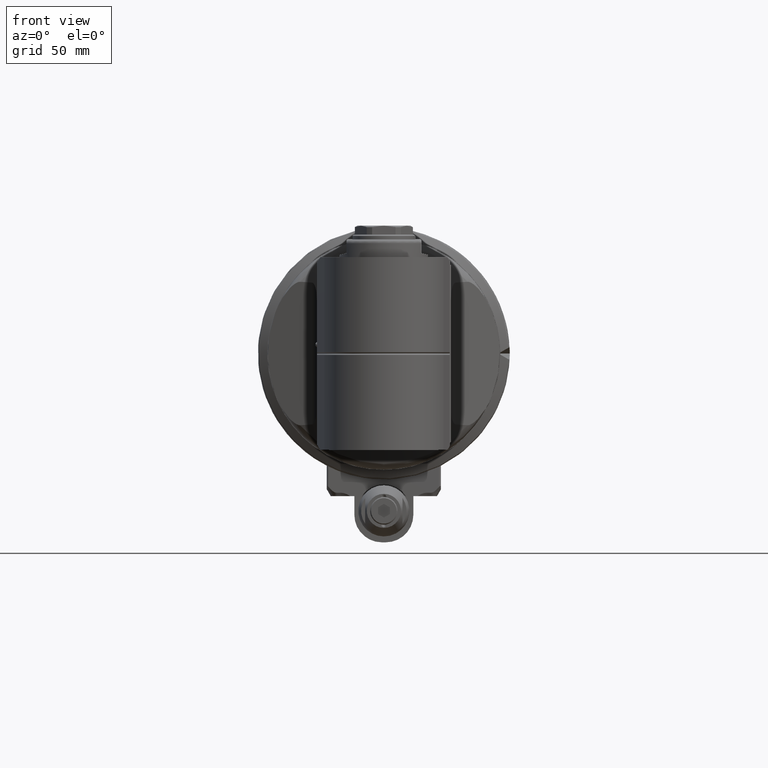
[diagram: clean part render]
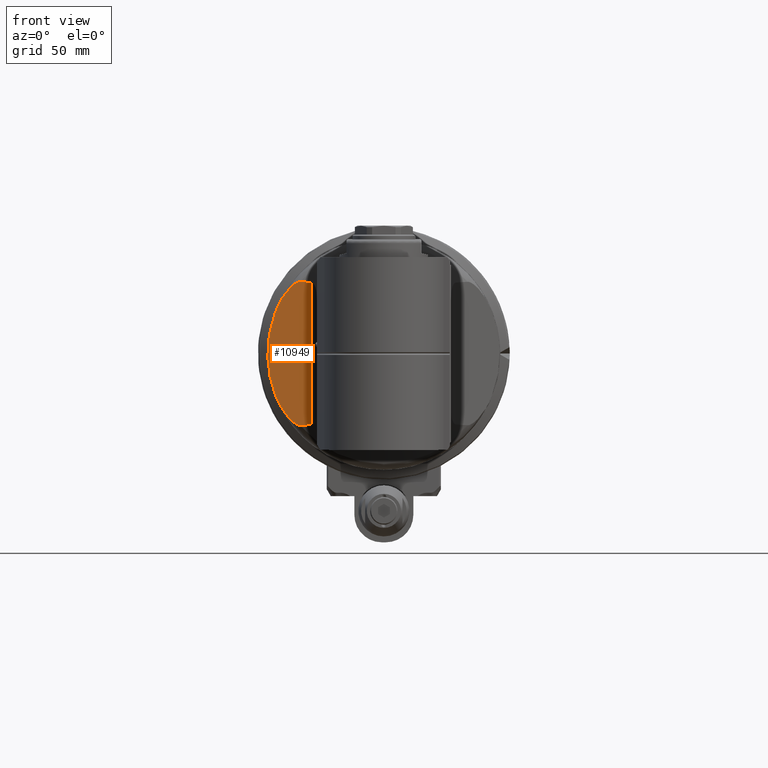
[diagram: same view with one face highlighted and labeled with its STEP entity id]
A machine part, front view. The second image highlights one B-rep face of the part: STEP entity #10949.
In plain terms, the highlighted planar face has unit normal (0.342, 0.9397, 0).
Its self-contained STEP definition (entity closure, byte-faithful):
#57=ELLIPSE('',#12046,62.1233155909331,36.4919332928876);
#60=ELLIPSE('',#12054,62.1233155909331,36.4919332928876);
#65=ELLIPSE('',#12232,62.7864885760796,59.);
#321=B_SPLINE_CURVE_WITH_KNOTS('',3,(#22539,#22540,#22541,#22542,#22543,
#22544,#22545,#22546,#22547,#22548,#22549,#22550,#22551,#22552,#22553,#22554),
 .UNSPECIFIED.,.F.,.F.,(4,2,2,2,2,2,2,4),(-11.6559211212488,-11.6409107028819,
-11.494381998211,-11.1814479597925,-10.7714451747578,-10.3614423897231,
-9.9947331046392,-9.68030428143882),.UNSPECIFIED.);
#322=B_SPLINE_CURVE_WITH_KNOTS('',3,(#22557,#22558,#22559,#22560,#22561,
#22562,#22563,#22564,#22565,#22566,#22567,#22568,#22569,#22570,#22571,#22572),
 .UNSPECIFIED.,.F.,.F.,(4,2,2,2,2,2,2,4),(-5.61335365542043,-5.29892483222005,
-4.93221554713619,-4.52221276210146,-4.11220997706673,-3.79927593864824,
-3.65274723397739,-3.63773681557559),.UNSPECIFIED.);
#1088=LINE('',#22536,#1781);
#1781=VECTOR('',#15276,72.12424357356);
#2405=PLANE('',#12231);
#2993=FACE_OUTER_BOUND('',#3728,.T.);
#3728=EDGE_LOOP('',(#9946,#9947,#9948,#9949,#9950,#9951));
#5286=VERTEX_POINT('',#21953);
#5287=VERTEX_POINT('',#21971);
#5292=VERTEX_POINT('',#22014);
#5293=VERTEX_POINT('',#22016);
#5401=VERTEX_POINT('',#22538);
#5402=VERTEX_POINT('',#22555);
#6749=EDGE_CURVE('',#5287,#5286,#57,.T.);
#6758=EDGE_CURVE('',#5293,#5292,#60,.T.);
#6942=EDGE_CURVE('',#5293,#5286,#1088,.T.);
#6943=EDGE_CURVE('',#5292,#5401,#321,.T.);
#6944=EDGE_CURVE('',#5401,#5402,#65,.T.);
#6945=EDGE_CURVE('',#5402,#5287,#322,.T.);
#9946=ORIENTED_EDGE('',*,*,#6749,.T.);
#9947=ORIENTED_EDGE('',*,*,#6942,.F.);
#9948=ORIENTED_EDGE('',*,*,#6758,.T.);
#9949=ORIENTED_EDGE('',*,*,#6943,.T.);
#9950=ORIENTED_EDGE('',*,*,#6944,.T.);
#9951=ORIENTED_EDGE('',*,*,#6945,.T.);
#10949=ADVANCED_FACE('',(#2993),#2405,.F.);
#12046=AXIS2_PLACEMENT_3D('',#21972,#14845,#14846);
#12054=AXIS2_PLACEMENT_3D('',#22017,#14862,#14863);
#12231=AXIS2_PLACEMENT_3D('',#22537,#15277,#15278);
#12232=AXIS2_PLACEMENT_3D('',#22556,#15279,#15280);
#14845=DIRECTION('center_axis',(0.939692620785897,0.,-0.342020143325699));
#14846=DIRECTION('ref_axis',(-0.3420201433257,-5.36138331026489E-16,-0.939692620785897));
#14862=DIRECTION('center_axis',(0.939692620785897,0.,-0.342020143325699));
#14863=DIRECTION('ref_axis',(-0.3420201433257,-5.36138331026489E-16,-0.939692620785897));
#15276=DIRECTION('',(1.891516617804E-14,1.,5.162264102757E-14));
#15277=DIRECTION('center_axis',(-0.939692620785897,0.,0.342020143325699));
#15278=DIRECTION('ref_axis',(-0.342020143325699,0.,-0.939692620785897));
#15279=DIRECTION('center_axis',(0.939692620785897,0.,-0.342020143325699));
#15280=DIRECTION('ref_axis',(-0.342020143325699,0.,-0.939692620785897));
#21953=CARTESIAN_POINT('',(199.6051566057,36.06212178678,-36.63191942669));
#21971=CARTESIAN_POINT('',(197.4092845672,36.44687063463,-42.66502826866));
#21972=CARTESIAN_POINT('Origin',(196.353689964413,-1.11022302462516E-14,
-45.5652506037463));
#22014=CARTESIAN_POINT('',(197.409284567,-36.44687063472,-42.66502826898));
#22016=CARTESIAN_POINT('',(199.6051566057,-36.06212178678,-36.6319194267));
#22017=CARTESIAN_POINT('Origin',(196.353689964413,-1.11022302462516E-14,
-45.5652506037463));
#22536=CARTESIAN_POINT('',(199.6051566057,-36.06212178678,-36.6319194267));
#22537=CARTESIAN_POINT('Origin',(199.6051566057,-70.8000024,-36.6319194267));
#22538=CARTESIAN_POINT('',(192.877745632,-21.05470234073,-55.11532916842));
#22539=CARTESIAN_POINT('Ctrl Pts',(197.409284567019,-36.4468706347329,-42.6650282689866));
#22540=CARTESIAN_POINT('Ctrl Pts',(197.391047714437,-36.4484286364148,-42.7151336096594));
#22541=CARTESIAN_POINT('Ctrl Pts',(197.373165303821,-36.4478667741063,-42.7642651290308));
#22542=CARTESIAN_POINT('Ctrl Pts',(197.189156047642,-36.4256948877559,-43.2698264053529));
#22543=CARTESIAN_POINT('Ctrl Pts',(196.998861617754,-36.2413914190267,-43.7926560545199));
#22544=CARTESIAN_POINT('Ctrl Pts',(196.520537533372,-35.6170940452338,-45.1068406755387));
#22545=CARTESIAN_POINT('Ctrl Pts',(196.172274863789,-34.889078651067,-46.0636844962564));
#22546=CARTESIAN_POINT('Ctrl Pts',(195.543014997039,-33.3327687859109,-47.7925617711215));
#22547=CARTESIAN_POINT('Ctrl Pts',(195.189002332923,-32.2522221109693,-48.7652035719811));
#22548=CARTESIAN_POINT('Ctrl Pts',(194.54133418447,-29.9393153926789,-50.544657185157));
#22549=CARTESIAN_POINT('Ctrl Pts',(194.247715797437,-28.7068665472737,-51.3513670734661));
#22550=CARTESIAN_POINT('Ctrl Pts',(193.779751006201,-26.5089003436226,-52.6370897704877));
#22551=CARTESIAN_POINT('Ctrl Pts',(193.555560964085,-25.3362847852521,-53.2530468488655));
#22552=CARTESIAN_POINT('Ctrl Pts',(193.176660968238,-23.103187317417,-54.294066031687));
#22553=CARTESIAN_POINT('Ctrl Pts',(193.016270121653,-22.0509882551094,-54.7347362609661));
#22554=CARTESIAN_POINT('Ctrl Pts',(192.877745631968,-21.0547023407338,-55.1153291684183));
#22555=CARTESIAN_POINT('',(192.877745632,21.05470234073,-55.11532916842));
#22556=CARTESIAN_POINT('Origin',(212.938084901058,0.,0.));
#22557=CARTESIAN_POINT('Ctrl Pts',(192.877745631968,21.0547023407338,-55.1153291684183));
#22558=CARTESIAN_POINT('Ctrl Pts',(193.016270121653,22.0509882551094,-54.7347362609661));
#22559=CARTESIAN_POINT('Ctrl Pts',(193.176660968238,23.103187317417,-54.294066031687));
#22560=CARTESIAN_POINT('Ctrl Pts',(193.555560964085,25.3362847852521,-53.2530468488656));
#22561=CARTESIAN_POINT('Ctrl Pts',(193.779751006201,26.5089003436226,-52.6370897704877));
#22562=CARTESIAN_POINT('Ctrl Pts',(194.247715797437,28.7068665472737,-51.3513670734661));
#22563=CARTESIAN_POINT('Ctrl Pts',(194.54133418447,29.9393153926789,-50.544657185157));
#22564=CARTESIAN_POINT('Ctrl Pts',(195.189002332923,32.2522221109693,-48.7652035719811));
#22565=CARTESIAN_POINT('Ctrl Pts',(195.543014997039,33.3327687859109,-47.7925617711215));
#22566=CARTESIAN_POINT('Ctrl Pts',(196.172274863789,34.889078651067,-46.0636844962564));
#22567=CARTESIAN_POINT('Ctrl Pts',(196.520537533372,35.6170940452338,-45.1068406755387));
#22568=CARTESIAN_POINT('Ctrl Pts',(196.998861617754,36.2413914190267,-43.7926560545199));
#22569=CARTESIAN_POINT('Ctrl Pts',(197.189156047642,36.4256948877559,-43.2698264053529));
#22570=CARTESIAN_POINT('Ctrl Pts',(197.373165303861,36.447866774111,-42.7642651289218));
#22571=CARTESIAN_POINT('Ctrl Pts',(197.39104771452,36.4484286364174,-42.7151336094312));
#22572=CARTESIAN_POINT('Ctrl Pts',(197.409284567146,36.446870634722,-42.6650282686376));